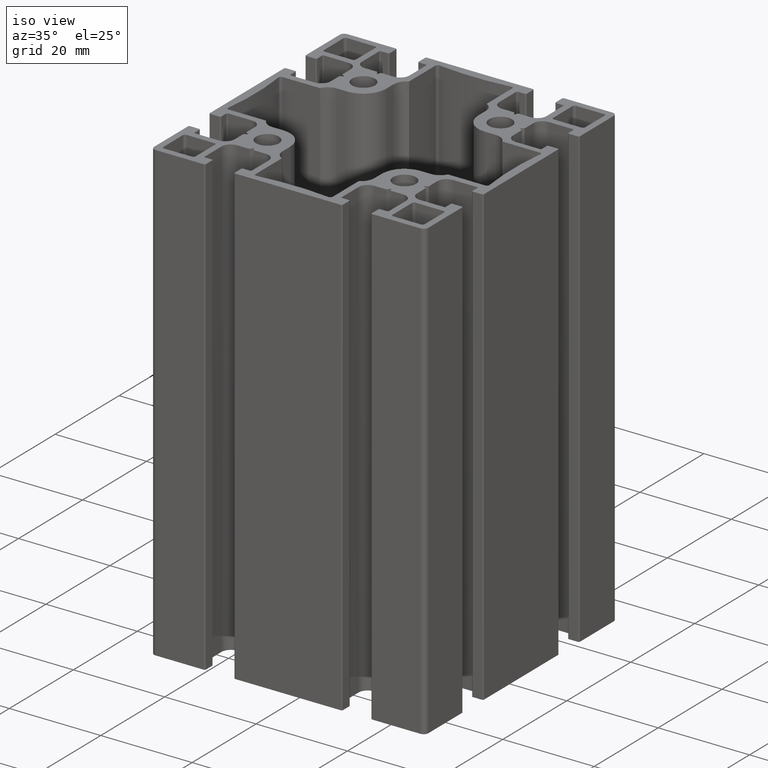
[diagram: clean part render]
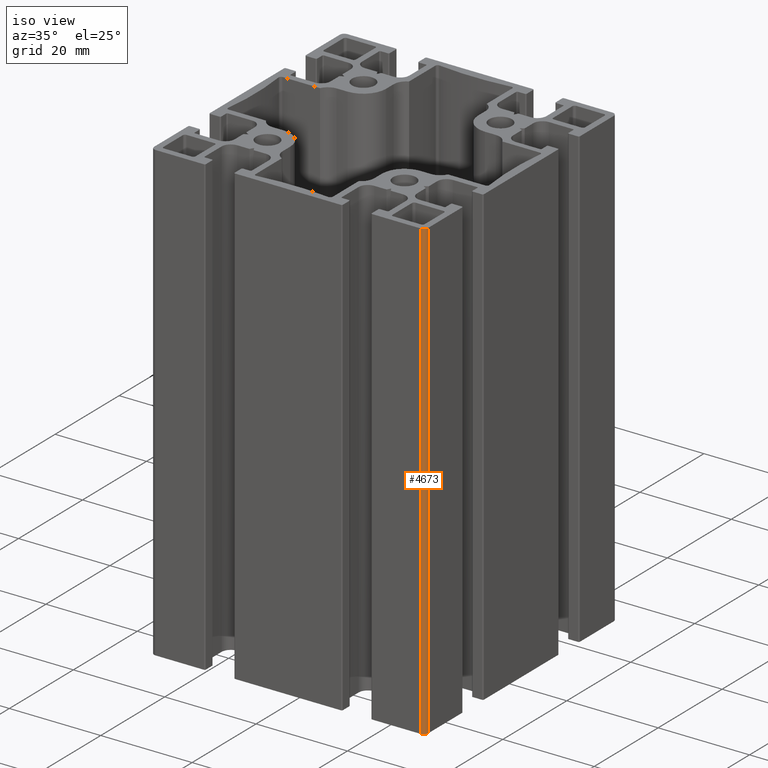
[diagram: same view with one face highlighted and labeled with its STEP entity id]
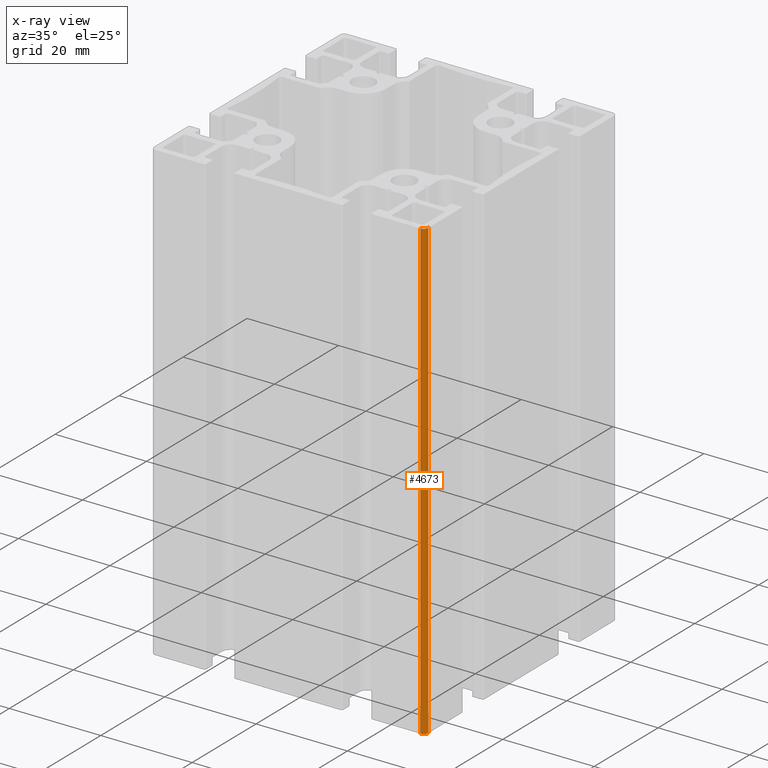
[diagram: x-ray of the same camera — body ghosted, the highlighted face saturated]
A machine part, iso view. The second image highlights one B-rep face of the part: STEP entity #4673.
The next image is the same camera in x-ray: the body ghosted, the highlighted face saturated — about 0% of this face is hidden behind the body in this view.
In plain terms, the highlighted cylindrical surface (edge-blend (fillet) strip) has radius 1.0033 mm, axis along (0, 0, 1).
Its self-contained STEP definition (entity closure, byte-faithful):
#171=CIRCLE('',#5048,1.00334445000003);
#172=CIRCLE('',#5049,1.00334445000003);
#328=CYLINDRICAL_SURFACE('',#5047,1.00334445000003);
#505=FACE_OUTER_BOUND('',#747,.T.);
#747=EDGE_LOOP('',(#3527,#3528,#3529,#3530));
#1129=LINE('',#7440,#1609);
#1130=LINE('',#7446,#1610);
#1609=VECTOR('',#6035,100.);
#1610=VECTOR('',#6042,100.);
#2095=VERTEX_POINT('',#7436);
#2096=VERTEX_POINT('',#7438);
#2097=VERTEX_POINT('',#7442);
#2098=VERTEX_POINT('',#7444);
#2695=EDGE_CURVE('',#2095,#2096,#1129,.T.);
#2696=EDGE_CURVE('',#2097,#2095,#171,.T.);
#2697=EDGE_CURVE('',#2098,#2096,#172,.T.);
#2698=EDGE_CURVE('',#2097,#2098,#1130,.T.);
#3527=ORIENTED_EDGE('',*,*,#2696,.T.);
#3528=ORIENTED_EDGE('',*,*,#2695,.T.);
#3529=ORIENTED_EDGE('',*,*,#2697,.F.);
#3530=ORIENTED_EDGE('',*,*,#2698,.F.);
#4673=ADVANCED_FACE('',(#505),#328,.T.);
#5047=AXIS2_PLACEMENT_3D('',#7441,#6036,#6037);
#5048=AXIS2_PLACEMENT_3D('',#7443,#6038,#6039);
#5049=AXIS2_PLACEMENT_3D('',#7445,#6040,#6041);
#6035=DIRECTION('',(0.,0.,1.));
#6036=DIRECTION('center_axis',(0.,0.,1.));
#6037=DIRECTION('ref_axis',(-1.5402790639627E-12,-1.,0.));
#6038=DIRECTION('center_axis',(0.,0.,1.));
#6039=DIRECTION('ref_axis',(-1.5402790639627E-12,-1.,0.));
#6040=DIRECTION('center_axis',(0.,0.,1.));
#6041=DIRECTION('ref_axis',(-1.5402790639627E-12,-1.,0.));
#6042=DIRECTION('',(0.,0.,1.));
#7436=CARTESIAN_POINT('',(29.9999990550003,-28.9966546050003,0.));
#7438=CARTESIAN_POINT('',(29.9999990550003,-28.9966546050003,100.));
#7440=CARTESIAN_POINT('',(29.9999990550003,-28.9966546050003,0.));
#7441=CARTESIAN_POINT('Origin',(28.9966546050003,-28.9966546049996,0.));
#7442=CARTESIAN_POINT('',(28.9966546049987,-29.9999990549996,0.));
#7443=CARTESIAN_POINT('Origin',(28.9966546050003,-28.9966546049996,0.));
#7444=CARTESIAN_POINT('',(28.9966546049987,-29.9999990549996,100.));
#7445=CARTESIAN_POINT('Origin',(28.9966546050003,-28.9966546049996,100.));
#7446=CARTESIAN_POINT('',(28.9966546049987,-29.9999990549996,0.));